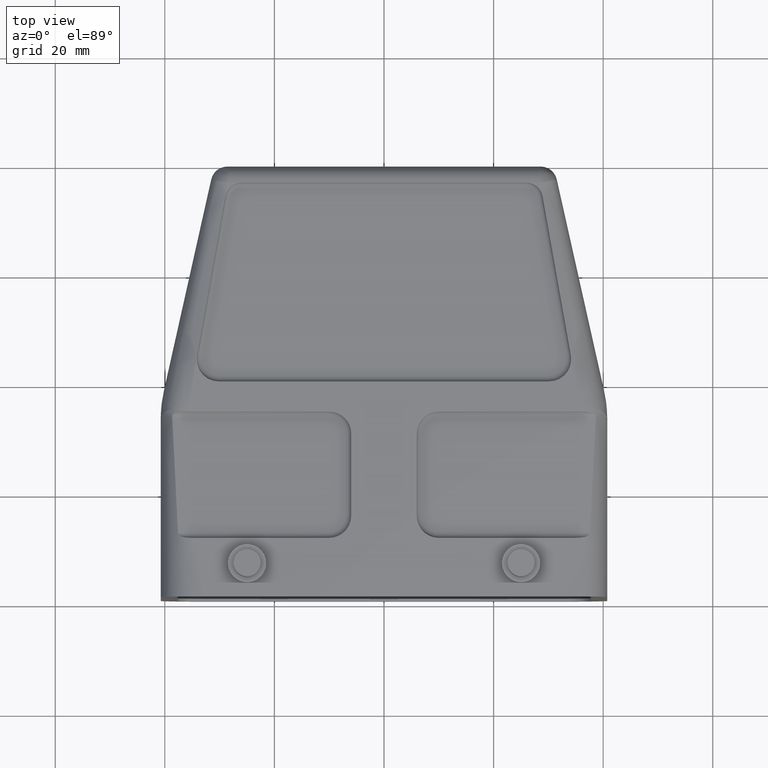
[diagram: clean part render]
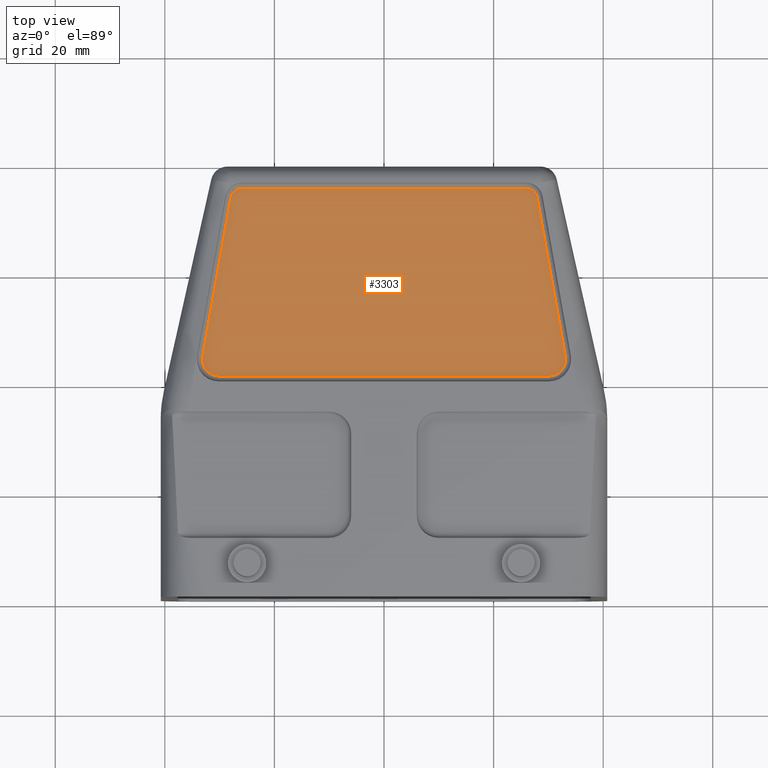
[diagram: same view with one face highlighted and labeled with its STEP entity id]
A machine part, top view. The second image highlights one B-rep face of the part: STEP entity #3303.
In plain terms, the highlighted planar face has unit normal (0, 0, 1).
Its self-contained STEP definition (entity closure, byte-faithful):
#555=DIRECTION('',(-1.E0,0.E0,0.E0));
#556=VECTOR('',#555,6.030030934070E1);
#557=CARTESIAN_POINT('',(3.015015467035E1,1.E0,2.7E1));
#558=LINE('',#557,#556);
#623=CARTESIAN_POINT('',(-2.597422278961E1,3.325E1,2.7E1));
#624=DIRECTION('',(0.E0,0.E0,1.E0));
#625=DIRECTION('',(0.E0,1.E0,0.E0));
#626=AXIS2_PLACEMENT_3D('',#623,#624,#625);
#628=CARTESIAN_POINT('',(2.597422278961E1,3.325E1,2.7E1));
#629=DIRECTION('',(0.E0,0.E0,1.E0));
#630=DIRECTION('',(9.846114241348E-1,1.747579567950E-1,0.E0));
#631=AXIS2_PLACEMENT_3D('',#628,#629,#630);
#633=DIRECTION('',(-1.747579567918E-1,9.846114241354E-1,0.E0));
#634=VECTOR('',#633,2.952966147914E1);
#635=CARTESIAN_POINT('',(3.310398894276E1,4.524273870378E0,2.700000000001E1));
#636=LINE('',#635,#634);
#637=CARTESIAN_POINT('',(3.015015467035E1,4.E0,2.7E1));
#638=DIRECTION('',(0.E0,0.E0,1.E0));
#639=DIRECTION('',(0.E0,-1.E0,0.E0));
#640=AXIS2_PLACEMENT_3D('',#637,#638,#639);
#642=CARTESIAN_POINT('',(-3.015015467035E1,4.E0,2.7E1));
#643=DIRECTION('',(0.E0,0.E0,1.E0));
#644=DIRECTION('',(-9.846114241353E-1,1.747579567924E-1,0.E0));
#645=AXIS2_PLACEMENT_3D('',#642,#643,#644);
#647=DIRECTION('',(-1.747579567949E-1,-9.846114241349E-1,0.E0));
#648=VECTOR('',#647,2.952966147914E1);
#649=CARTESIAN_POINT('',(-2.794344563788E1,3.359951591358E1,2.700000000003E1));
#650=LINE('',#649,#648);
#665=DIRECTION('',(1.E0,3.802440637806E-14,0.E0));
#666=VECTOR('',#665,5.194844557923E1);
#667=CARTESIAN_POINT('',(-2.597422278961E1,3.525E1,2.7E1));
#668=LINE('',#667,#666);
#2266=CARTESIAN_POINT('',(-2.597422278961E1,3.525E1,2.7E1));
#2267=CARTESIAN_POINT('',(-2.794344563788E1,3.359951591359E1,2.7E1));
#2268=VERTEX_POINT('',#2266);
#2269=VERTEX_POINT('',#2267);
#2270=CARTESIAN_POINT('',(2.597422278961E1,3.525E1,2.7E1));
#2271=VERTEX_POINT('',#2270);
#2272=CARTESIAN_POINT('',(2.794344563788E1,3.359951591359E1,2.7E1));
#2273=VERTEX_POINT('',#2272);
#2274=CARTESIAN_POINT('',(3.310398894276E1,4.524273870378E0,2.700000000001E1));
#2275=VERTEX_POINT('',#2274);
#2276=CARTESIAN_POINT('',(3.015015467035E1,9.999999999998E-1,2.7E1));
#2277=VERTEX_POINT('',#2276);
#2278=CARTESIAN_POINT('',(-3.015015467035E1,1.E0,2.7E1));
#2279=VERTEX_POINT('',#2278);
#2280=CARTESIAN_POINT('',(-3.310398894275E1,4.524273870377E0,2.7E1));
#2281=VERTEX_POINT('',#2280);
#3286=CARTESIAN_POINT('',(2.939409266517E0,2.015338677558E1,2.7E1));
#3287=DIRECTION('',(0.E0,0.E0,1.E0));
#3288=DIRECTION('',(1.E0,0.E0,0.E0));
#3289=AXIS2_PLACEMENT_3D('',#3286,#3287,#3288);
#3290=PLANE('',#3289);
#3292=ORIENTED_EDGE('',*,*,#3291,.F.);
#3294=ORIENTED_EDGE('',*,*,#3293,.T.);
#3295=ORIENTED_EDGE('',*,*,#3279,.F.);
#3296=ORIENTED_EDGE('',*,*,#3146,.F.);
#3297=ORIENTED_EDGE('',*,*,#3161,.F.);
#3298=ORIENTED_EDGE('',*,*,#3175,.T.);
#3299=ORIENTED_EDGE('',*,*,#3189,.F.);
#3300=ORIENTED_EDGE('',*,*,#3204,.F.);
#3301=EDGE_LOOP('',(#3292,#3294,#3295,#3296,#3297,#3298,#3299,#3300));
#3302=FACE_OUTER_BOUND('',#3301,.F.);
#3303=ADVANCED_FACE('',(#3302),#3290,.T.);
#627=CIRCLE('',#626,1.999999999998E0);
#632=CIRCLE('',#631,2.000000000004E0);
#641=CIRCLE('',#640,3.E0);
#646=CIRCLE('',#645,2.999999999999E0);
#3146=EDGE_CURVE('',#2275,#2273,#636,.T.);
#3161=EDGE_CURVE('',#2277,#2275,#641,.T.);
#3175=EDGE_CURVE('',#2277,#2279,#558,.T.);
#3189=EDGE_CURVE('',#2281,#2279,#646,.T.);
#3204=EDGE_CURVE('',#2269,#2281,#650,.T.);
#3279=EDGE_CURVE('',#2273,#2271,#632,.T.);
#3291=EDGE_CURVE('',#2268,#2269,#627,.T.);
#3293=EDGE_CURVE('',#2268,#2271,#668,.T.);